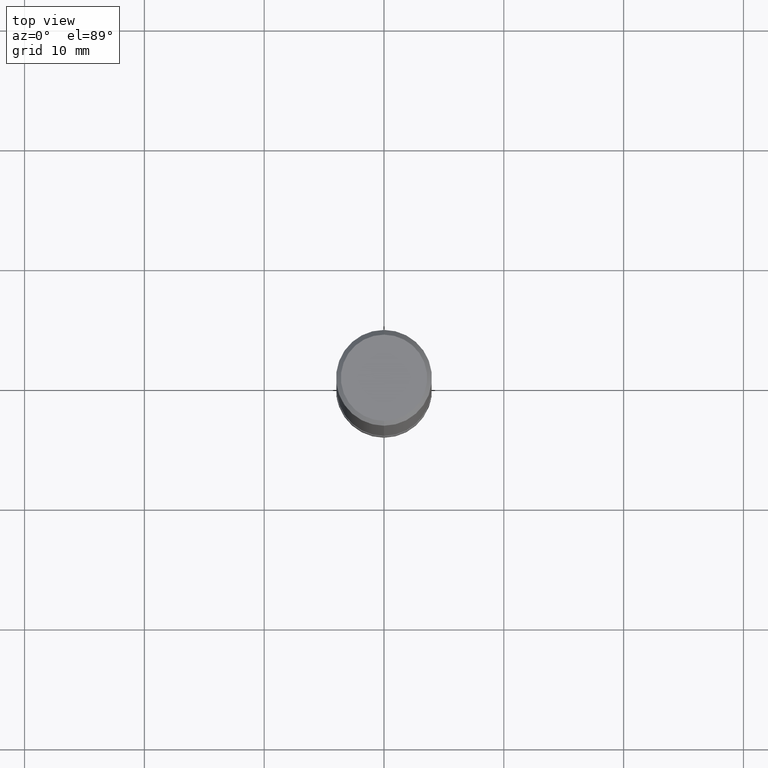
[diagram: clean part render]
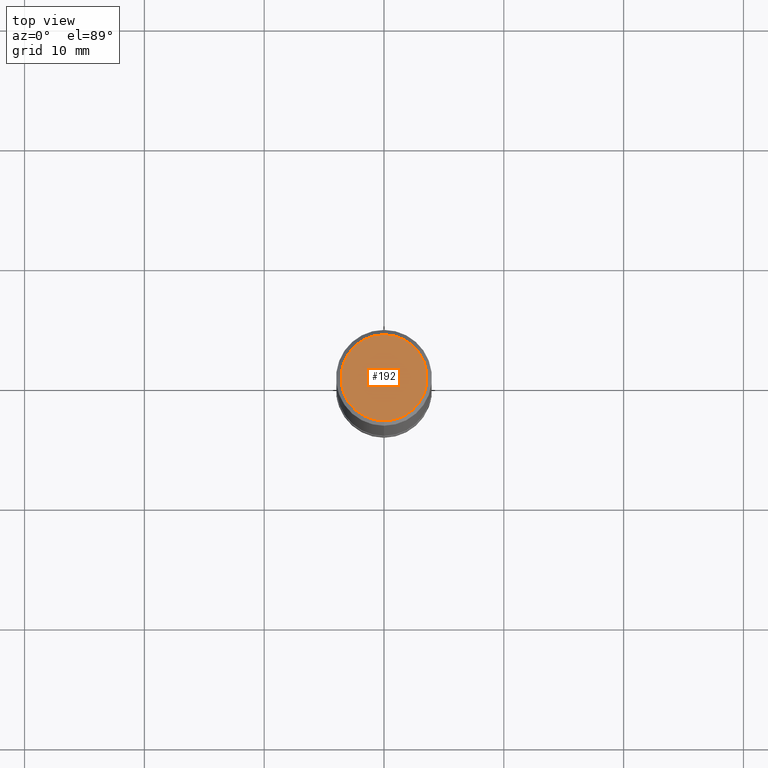
[diagram: same view with one face highlighted and labeled with its STEP entity id]
A machine part, top view. The second image highlights one B-rep face of the part: STEP entity #192.
In plain terms, the highlighted planar face has unit normal (-0, 0, 1).
Its self-contained STEP definition (entity closure, byte-faithful):
#106=EDGE_CURVE('',#138,#150,#247,.T.);
#138=VERTEX_POINT('',#282);
#150=VERTEX_POINT('',#295);
#162=EDGE_CURVE('',#150,#138,#309,.T.);
#192=ADVANCED_FACE('',(#343),#344,.T.);
#247=CIRCLE('',#395,3.6);
#282=CARTESIAN_POINT('',(4.40858287376056E-016,-3.6,0.0));
#295=CARTESIAN_POINT('',(0.0,3.6,0.0));
#309=CIRCLE('',#474,3.6);
#343=FACE_OUTER_BOUND('',#515,.T.);
#344=PLANE('',#516);
#395=AXIS2_PLACEMENT_3D('',#565,#566,#567);
#474=AXIS2_PLACEMENT_3D('',#647,#648,#649);
#515=EDGE_LOOP('',(#696,#697));
#516=AXIS2_PLACEMENT_3D('',#698,#699,#700);
#565=CARTESIAN_POINT('',(0.0,0.0,0.0));
#566=DIRECTION('',(0.0,0.0,-1.0));
#567=DIRECTION('',(0.0,1.0,0.0));
#647=CARTESIAN_POINT('',(0.0,0.0,0.0));
#648=DIRECTION('',(0.0,0.0,-1.0));
#649=DIRECTION('',(0.0,1.0,0.0));
#696=ORIENTED_EDGE('',*,*,#162,.F.);
#697=ORIENTED_EDGE('',*,*,#106,.F.);
#698=CARTESIAN_POINT('',(0.0,1.8,0.0));
#699=DIRECTION('',(-0.0,0.0,1.0));
#700=DIRECTION('',(0.0,-1.0,0.0));